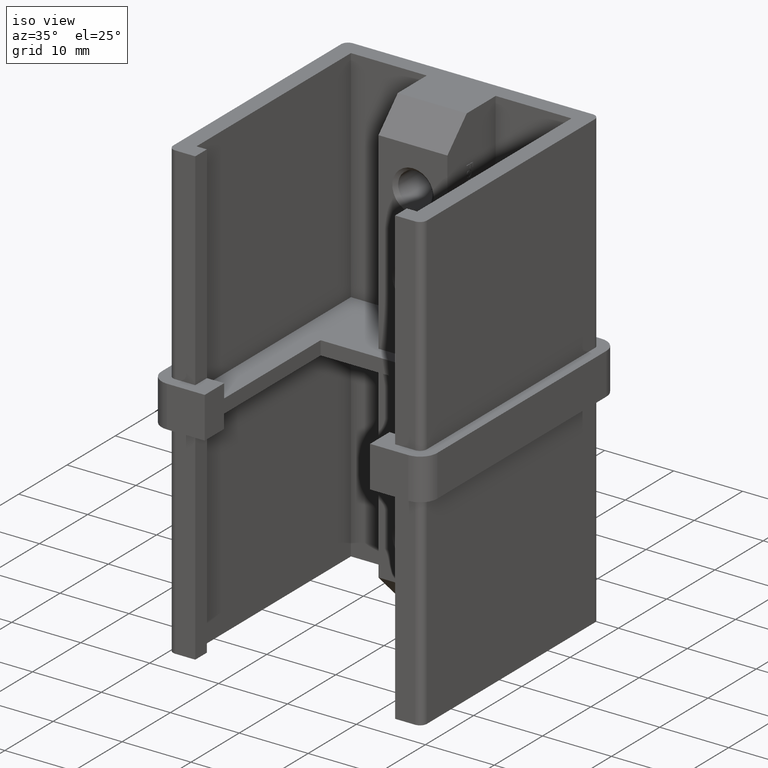
[diagram: clean part render]
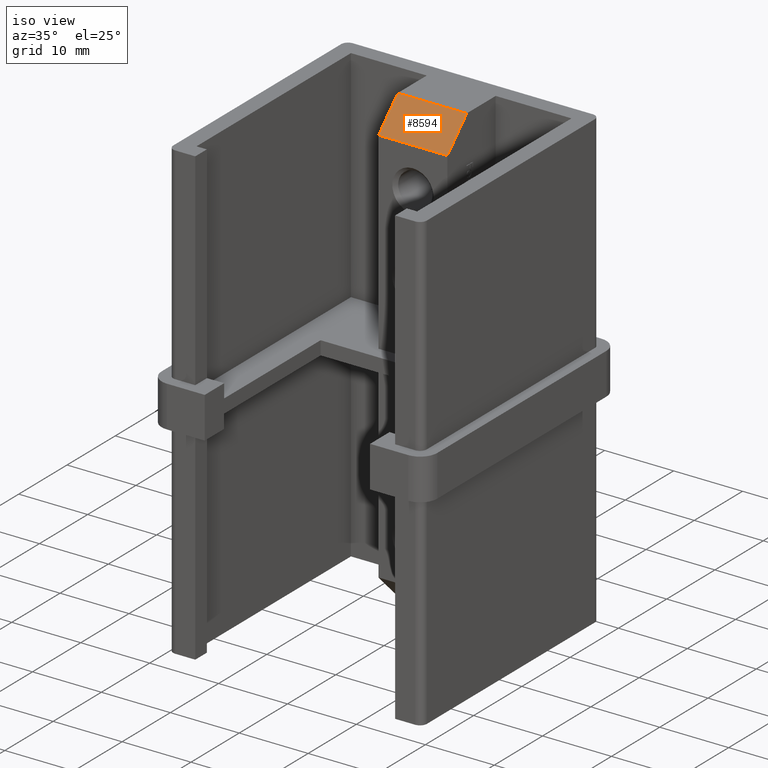
[diagram: same view with one face highlighted and labeled with its STEP entity id]
A machine part, iso view. The second image highlights one B-rep face of the part: STEP entity #8594.
In plain terms, the highlighted planar face has unit normal (0, -0.7071, 0.7071).
Its self-contained STEP definition (entity closure, byte-faithful):
#1 = DIRECTION ( 'NONE',  ( 0.000000000000000000, -0.7071067811865493491, 0.7071067811865456854 ) ) ;
#285 = EDGE_CURVE ( 'NONE', #7855, #1886, #1147, .T. ) ;
#396 = CARTESIAN_POINT ( 'NONE',  ( -5.000000000000000000, 6.000000000000000000, 28.99999999999998579 ) ) ;
#1036 = LINE ( 'NONE', #3000, #3694 ) ;
#1108 = CARTESIAN_POINT ( 'NONE',  ( 5.000000000000000000, 9.999999999999996447, 33.00000000000000000 ) ) ;
#1147 = LINE ( 'NONE', #396, #1329 ) ;
#1329 = VECTOR ( 'NONE', #10552, 1000.000000000000000 ) ;
#1664 = CARTESIAN_POINT ( 'NONE',  ( 5.000000000000000000, 10.00000000000000178, 33.00000000000000000 ) ) ;
#1886 = VERTEX_POINT ( 'NONE', #6980 ) ;
#1941 = EDGE_CURVE ( 'NONE', #2738, #9797, #12410, .T. ) ;
#2172 = CARTESIAN_POINT ( 'NONE',  ( -5.000000000000002665, -8.499999999999992895, 14.49999999999991829 ) ) ;
#2362 = PLANE ( 'NONE',  #4670 ) ;
#2738 = VERTEX_POINT ( 'NONE', #5121 ) ;
#3000 = CARTESIAN_POINT ( 'NONE',  ( 5.000000000000002665, -8.499999999999992895, 14.49999999999991829 ) ) ;
#3627 = ORIENTED_EDGE ( 'NONE', *, *, #1941, .F. ) ;
#3694 = VECTOR ( 'NONE', #8643, 1000.000000000000000 ) ;
#3748 = VECTOR ( 'NONE', #10221, 1000.000000000000000 ) ;
#4154 = EDGE_LOOP ( 'NONE', ( #11905, #4508, #11749, #3627 ) ) ;
#4324 = DIRECTION ( 'NONE',  ( 1.000000000000000000, 0.000000000000000000, 0.000000000000000000 ) ) ;
#4508 = ORIENTED_EDGE ( 'NONE', *, *, #285, .F. ) ;
#4613 = DIRECTION ( 'NONE',  ( -1.000000000000000000, 0.000000000000000000, 0.000000000000000000 ) ) ;
#4670 = AXIS2_PLACEMENT_3D ( 'NONE', #6759, #1, #4613 ) ;
#4703 = CARTESIAN_POINT ( 'NONE',  ( 5.000000000000000888, 6.000000000000000000, 28.99999999999998579 ) ) ;
#5121 = CARTESIAN_POINT ( 'NONE',  ( -5.000000000000000000, 10.00000000000000178, 33.00000000000000000 ) ) ;
#6759 = CARTESIAN_POINT ( 'NONE',  ( 0.000000000000000000, 9.999999999999996447, 33.00000000000000000 ) ) ;
#6947 = LINE ( 'NONE', #2172, #3748 ) ;
#6980 = CARTESIAN_POINT ( 'NONE',  ( -5.000000000000000888, 6.000000000000001776, 28.99999999999998579 ) ) ;
#7855 = VERTEX_POINT ( 'NONE', #4703 ) ;
#8581 = EDGE_CURVE ( 'NONE', #1886, #2738, #6947, .T. ) ;
#8594 = ADVANCED_FACE ( 'NONE', ( #9918 ), #2362, .T. ) ;
#8643 = DIRECTION ( 'NONE',  ( 9.292687373838652206E-17, -0.7071067811865456854, -0.7071067811865493491 ) ) ;
#9797 = VERTEX_POINT ( 'NONE', #1664 ) ;
#9918 = FACE_OUTER_BOUND ( 'NONE', #4154, .T. ) ;
#10221 = DIRECTION ( 'NONE',  ( 9.292687373838652206E-17, 0.7071067811865456854, 0.7071067811865493491 ) ) ;
#10552 = DIRECTION ( 'NONE',  ( -1.000000000000000000, 0.000000000000000000, 0.000000000000000000 ) ) ;
#11185 = VECTOR ( 'NONE', #4324, 1000.000000000000000 ) ;
#11473 = EDGE_CURVE ( 'NONE', #9797, #7855, #1036, .T. ) ;
#11749 = ORIENTED_EDGE ( 'NONE', *, *, #11473, .F. ) ;
#11905 = ORIENTED_EDGE ( 'NONE', *, *, #8581, .F. ) ;
#12410 = LINE ( 'NONE', #1108, #11185 ) ;